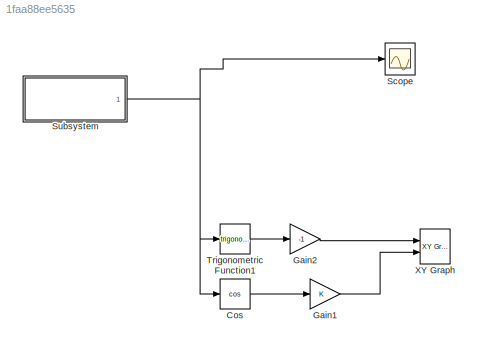
MODEL slx_1faa88ee5635
KIND model
CONFIG AbsTol = auto
CONFIG EnableMultiTasking = off
CONFIG FixedStep = auto
CONFIG MaxStep = auto
CONFIG MinStep = auto
CONFIG RelTol = 1e-3
CONFIG SampleTimeConstraint = Unconstrained
CONFIG SolverName = VariableStepAuto
CONFIG StartTime = 0.0
CONFIG StopTime = 10.0
BLOCK [Trigonometry] Cos
  Operator = cos
  Ports = [1, 1]
BLOCK [Gain] Gain1
BLOCK [Gain] Gain2
  Gain = -1
BLOCK [Scope] Scope
  Floating = off
  NumInputPorts = 1
  Ports = [1]
  ScopeSpecificationString = Simulink.scopes.TimeScopeBlockCfg('CurrentConfiguration', extmgr.ConfigurationSet(extmgr.Configuration('Core','General UI',true),extmgr.Configuration('Core','Source UI',true),extmgr.Configuration('Sources','WiredSimulink',true),extmgr.Configuration('Visuals','Time Domain',true,'SerializedDisplays',{struct('MinYLimReal','0.19637','MaxYLimReal','6.08665','YLabelReal','','MinYLimMag','0.19637','MaxYL...<+1356ch>
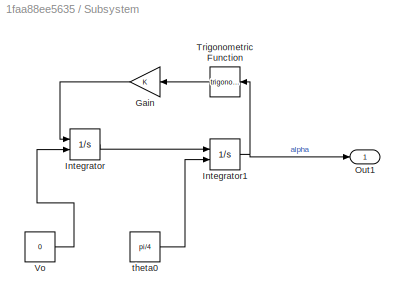
BLOCK [SubSystem] Subsystem
  Ports = [0, 1]
  RequestExecContextInheritance = off
BLOCK [Gain] Subsystem/Gain
BLOCK [Integrator] Subsystem/Integrator
  InitialConditionSource = external
  Ports = [2, 1]
BLOCK [Integrator] Subsystem/Integrator1
  InitialConditionSource = external
  Ports = [2, 1]
BLOCK [Outport] Subsystem/Out1
BLOCK [Trigonometry] Subsystem/Trigonometric Function
  Ports = [1, 1]
BLOCK [Constant] Subsystem/Vo
  Value = 0
BLOCK [Constant] Subsystem/theta0
  Value = pi/4
BLOCK [Trigonometry] Trigonometric Function1
  Ports = [1, 1]
BLOCK [Reference] XY Graph  REF=simulink/Sinks/XY Graph
  Ports = [2]
  SourceBlock = simulink/Sinks/XY Graph
  SourceProductBaseCode = SL
  SourceType = XY scope.
LINE Cos:1 -> Gain1:1
LINE Gain1:1 -> XY Graph:2
LINE Gain2:1 -> XY Graph:1
LINE Subsystem/Gain:1 -> Subsystem/Integrator:1
NET Subsystem/Integrator1:1 -> Subsystem/Out1:1, Subsystem/Trigonometric Function:1
LINE Subsystem/Integrator:1 -> Subsystem/Integrator1:1
LINE Subsystem/Trigonometric Function:1 -> Subsystem/Gain:1
LINE Subsystem/Vo:1 -> Subsystem/Integrator:2
LINE Subsystem/theta0:1 -> Subsystem/Integrator1:2
NET Subsystem:1 -> Cos:1, Scope:1, Trigonometric Function1:1
LINE Trigonometric Function1:1 -> Gain2:1
note: NET lines group one-source signal fan-out (src -> all destinations, sorted); 1:1 wires keep LINE
